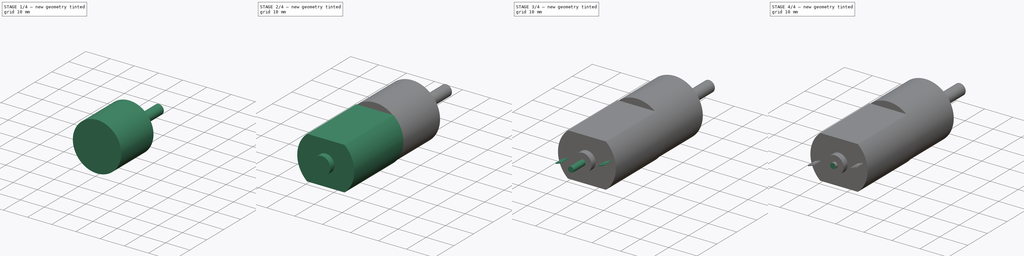
[diagram: build sequence overview — one tinted view per stage of 4, left to right]
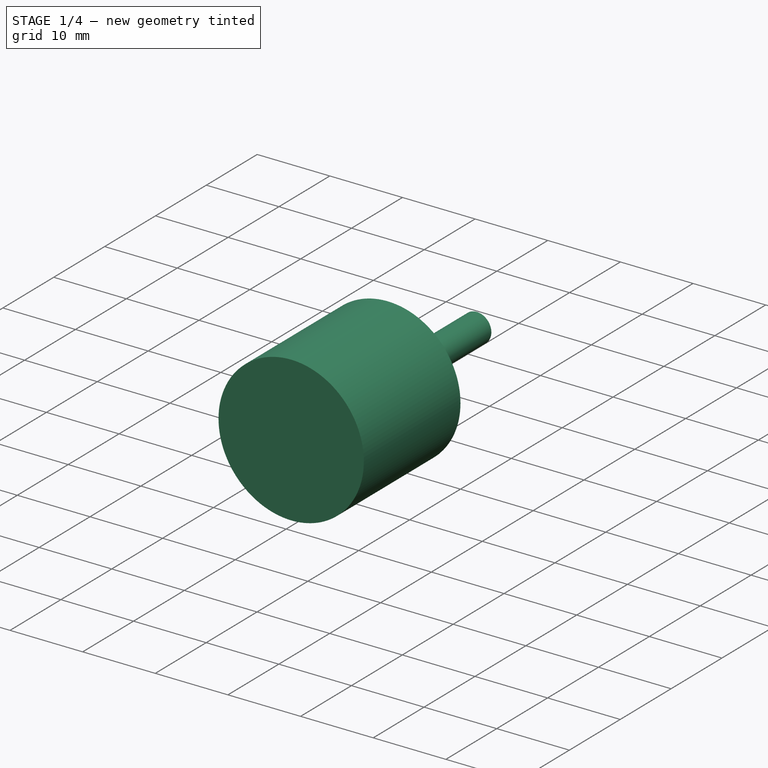
[diagram: stage 1 of 4 — iso view after this stage's code; geometry added in this stage tinted green]
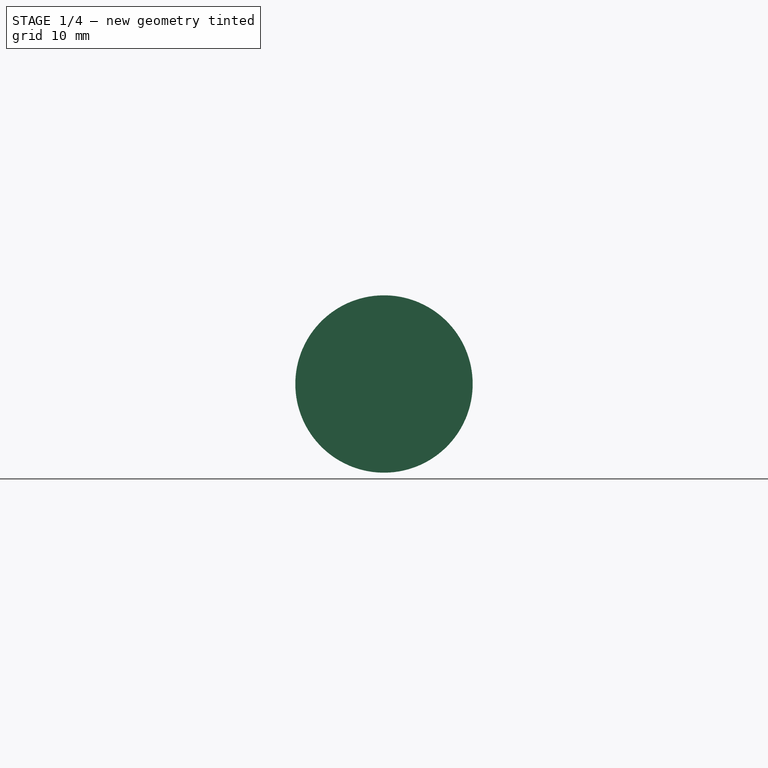
[diagram: stage 1 of 4 — front view after this stage's code; geometry added in this stage tinted green]
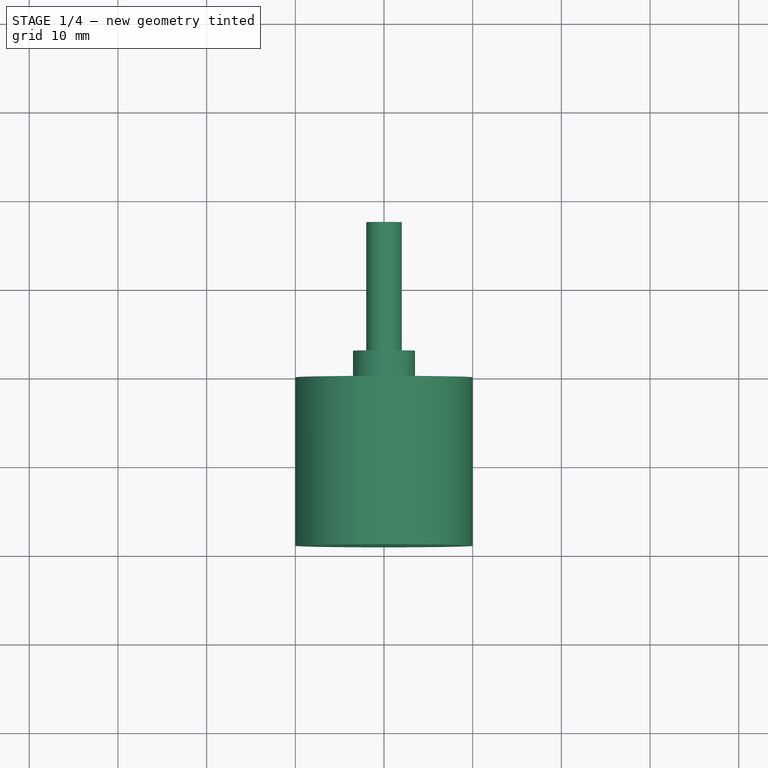
[diagram: stage 1 of 4 — top view after this stage's code; geometry added in this stage tinted green]
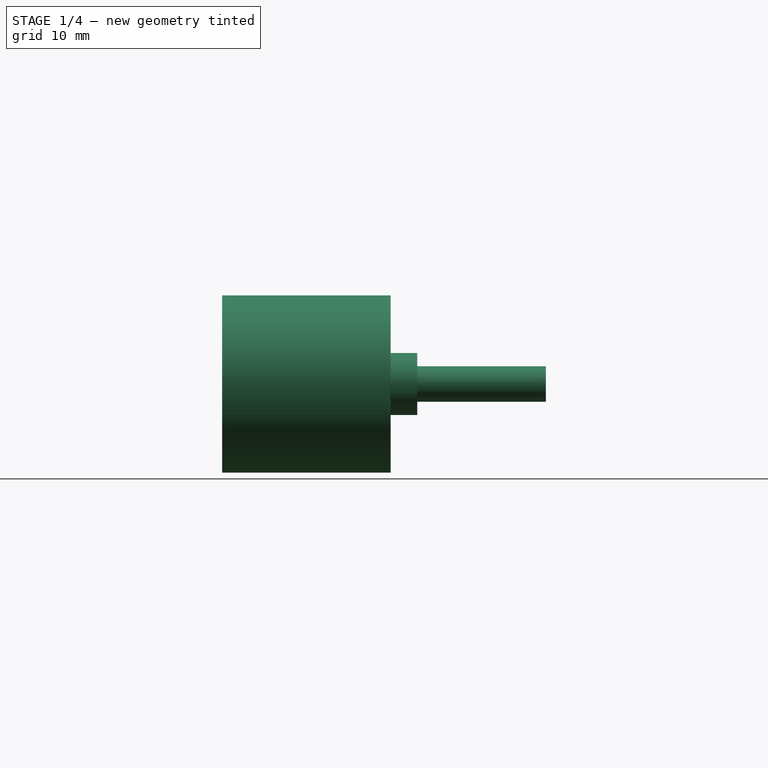
[diagram: stage 1 of 4 — right view after this stage's code; geometry added in this stage tinted green]
FCSTD DOCUMENT  (FreeCAD 0.18.1R)
Label: 20D_156:1
License: All rights reserved
LicenseURL: http://en.wikipedia.org/wiki/All_rights_reserved
objects: Sketcher::SketchObject×11, PartDesign::Pad×7, PartDesign::Pocket×4, PartDesign::PolarPattern×2, PartDesign::Body×1
note: 36 computed .brp shape members not serialized (recipe doc carries the construction recipe); baked Part::Feature solids carry a one-line shape summary decoded from their .brp

FEATURE [Sketcher::SketchObject] Sketch
  MapMode = 5
  Placement = pos=(0,0,0) rot=(1,0,0;1.5708rad)
  Support = -> [XZ_Plane]
  sketch-geometry (1):
    g0: Circle CenterX=0 CenterY=0 CenterZ=0 NormalX=0 NormalY=0 NormalZ=1 AngleXU=0 Radius=10
  constraints (2):
    c: Coincident(g-1,g0)
    c: Radius(g0) = 10
FEATURE [PartDesign::Pad] Pad
  Length = 19
  Length2 = 100
  Placement = pos=(0,0,0) rot=(1,0,0;1.5708rad)
  Profile = -> Sketch
  Type = 0
FEATURE [Sketcher::SketchObject] Sketch001
  MapMode = 5
  Placement = pos=(0,0,0) rot=(-1,0,0;1.5708rad)
  Support = -> [Pad]
  sketch-geometry (1):
    g0: Circle CenterX=0 CenterY=0 CenterZ=0 NormalX=0 NormalY=0 NormalZ=1 AngleXU=0 Radius=3.5
  constraints (2):
    c: Coincident(g0,g-1)
    c: Radius(g0) = 3.5
FEATURE [PartDesign::Pad] Pad001
  BaseFeature = -> Pad
  Length = 3
  Length2 = 100
  Placement = pos=(0,0,0) rot=(1,0,0;1.5708rad)
  Profile = -> Sketch001
  Type = 0
FEATURE [Sketcher::SketchObject] Sketch002
  MapMode = 5
  Placement = pos=(0,3,-2.7e-15) rot=(-1,0,0;1.5708rad)
  Support = -> [Pad001]
  sketch-geometry (1):
    g0: Circle CenterX=0 CenterY=0 CenterZ=0 NormalX=0 NormalY=0 NormalZ=1 AngleXU=0 Radius=2
  constraints (2):
    c: Coincident(g0,g-1)
    c: Radius(g0) = 2
FEATURE [PartDesign::Pad] Pad002
  BaseFeature = -> Pad001
  Length = 14.5
  Length2 = 100
  Placement = pos=(0,0,0) rot=(1,0,0;1.5708rad)
  Profile = -> Sketch002
  Type = 0
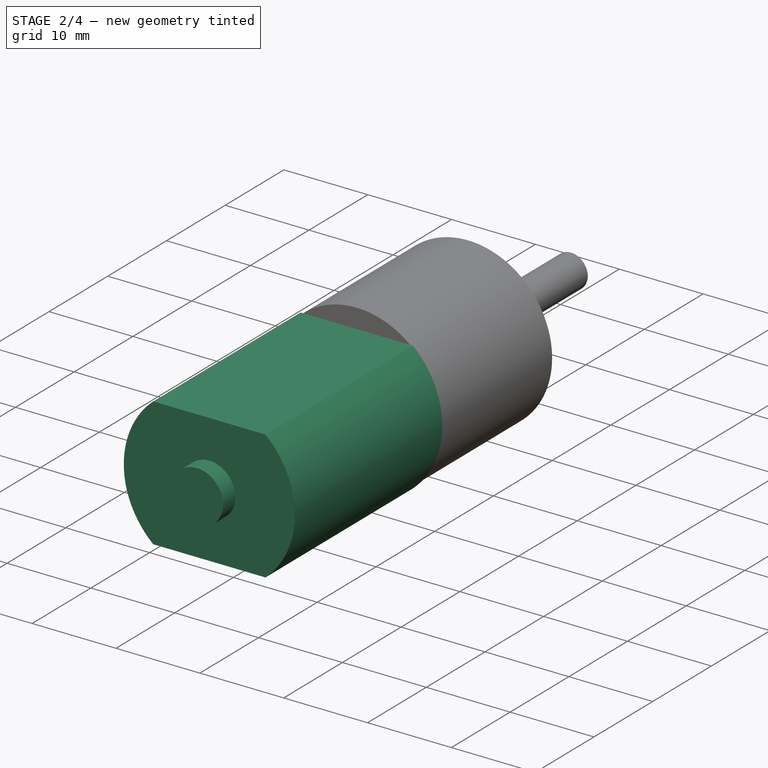
[diagram: stage 2 of 4 — iso view after this stage's code; geometry added in this stage tinted green]
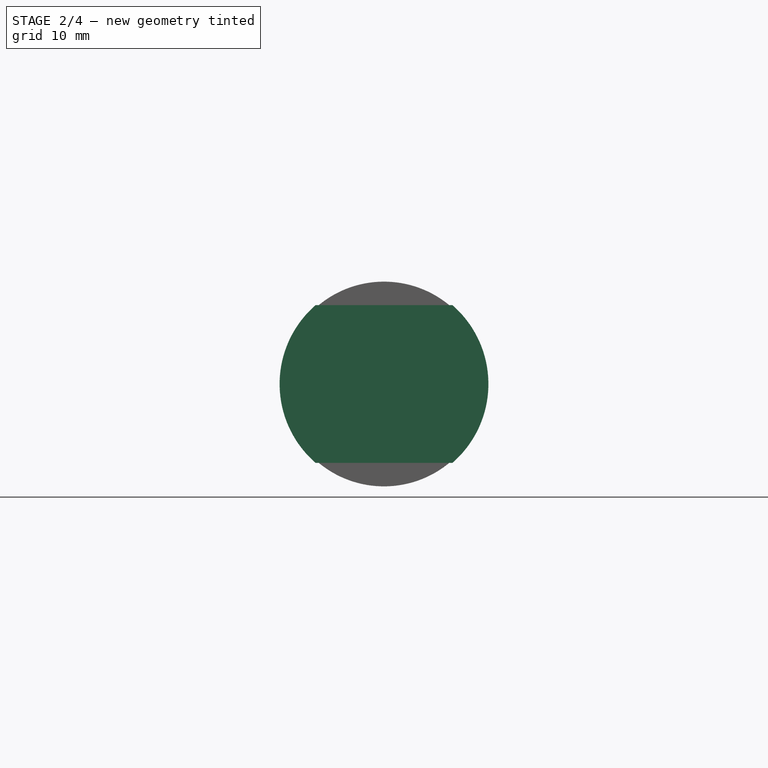
[diagram: stage 2 of 4 — front view after this stage's code; geometry added in this stage tinted green]
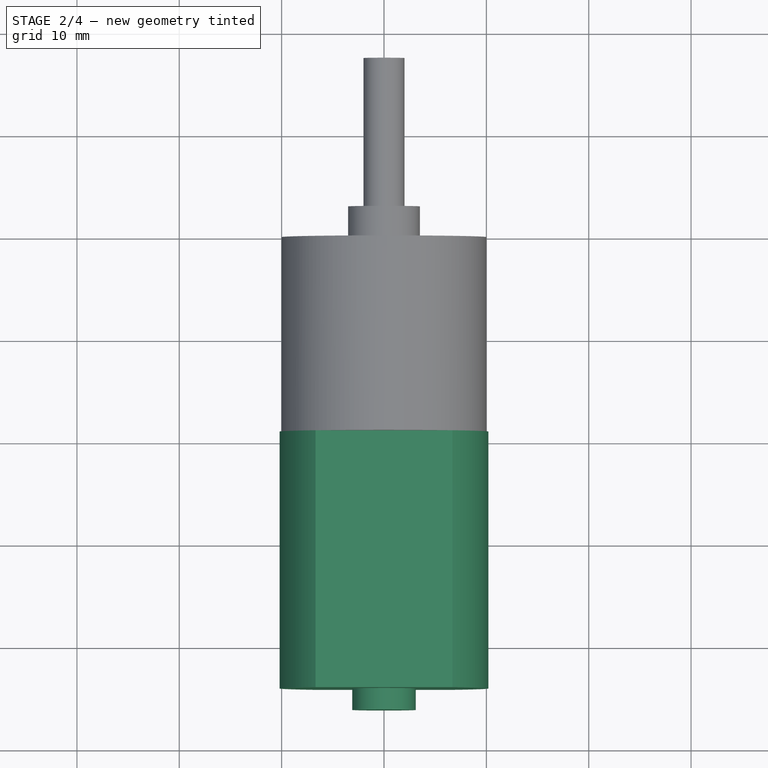
[diagram: stage 2 of 4 — top view after this stage's code; geometry added in this stage tinted green]
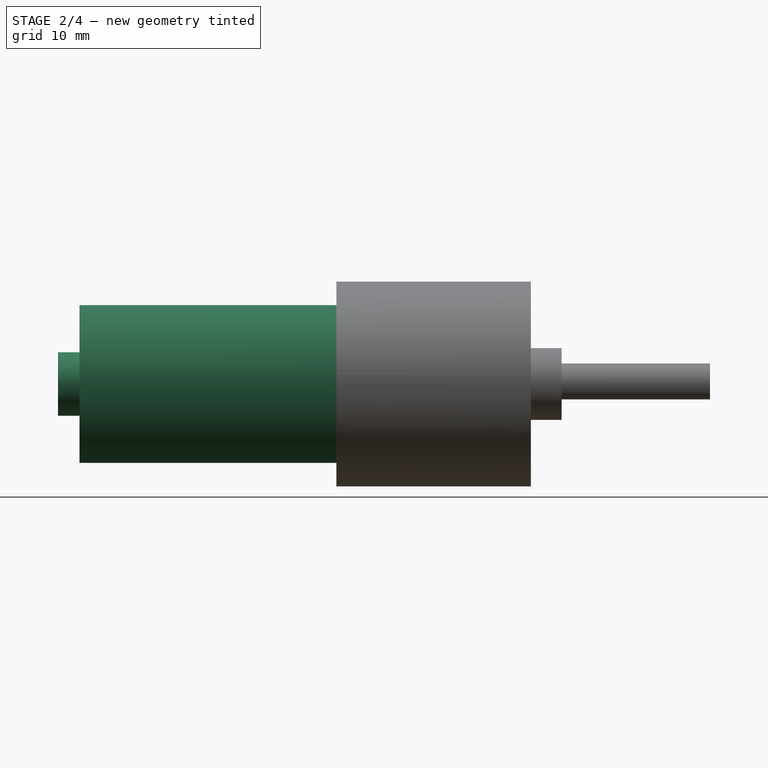
[diagram: stage 2 of 4 — right view after this stage's code; geometry added in this stage tinted green]
FEATURE [Sketcher::SketchObject] Sketch003
  MapMode = 5
  Placement = pos=(0,17.5,-2.19e-14) rot=(-1,0,0;1.5708rad)
  Support = -> [Pad002]
  sketch-geometry (4):
    g0: LineSegment StartX=-5 StartY=6.5 StartZ=0 EndX=5 EndY=6.5 EndZ=0
    g1: LineSegment StartX=5 StartY=6.5 StartZ=0 EndX=5 EndY=1.5 EndZ=0
    g2: LineSegment StartX=5 StartY=1.5 StartZ=0 EndX=-5 EndY=1.5 EndZ=0
    g3: LineSegment StartX=-5 StartY=1.5 StartZ=0 EndX=-5 EndY=6.5 EndZ=0
  constraints (11):
    c: Coincident(g0,g1)
    c: Coincident(g1,g2)
    c: Coincident(g2,g3)
    c: Coincident(g3,g0)
    c: Horizontal(g2)
    c: Vertical(g1)
    c: Vertical(g3)
    c: Distance(g-1,g2) = 1.5
    c: Distance(g0) = 10
    c: Symmetric(g0,g0,g-2)
    c: Distance(g1) = 5
FEATURE [PartDesign::Pocket] Pocket
  BaseFeature = -> Pad002
  Length = 14.5
  Length2 = 100
  Placement = pos=(0,0,0) rot=(1,0,0;1.5708rad)
  Profile = -> Sketch003
  Type = 0
FEATURE [Sketcher::SketchObject] Sketch004
  MapMode = 5
  Placement = pos=(0,-19,8.4e-15) rot=(1,0,0;1.5708rad)
  Support = -> [Pocket]
  sketch-geometry (6):
    g0: LineSegment StartX=-6.68954 StartY=7.7 StartZ=0 EndX=6.68954 EndY=7.7 EndZ=0
    g1: LineSegment [constr] StartX=6.68954 StartY=7.7 StartZ=0 EndX=6.68954 EndY=-7.7 EndZ=0
    g2: LineSegment StartX=6.68954 StartY=-7.7 StartZ=0 EndX=-6.68954 EndY=-7.7 EndZ=0
    g3: LineSegment [constr] StartX=-6.68954 StartY=-7.7 StartZ=0 EndX=-6.68954 EndY=7.7 EndZ=0
    g4: ArcOfCircle CenterX=0 CenterY=-1e-16 CenterZ=0 NormalX=0 NormalY=0 NormalZ=1 AngleXU=0 Radius=10.2 StartAngle=5.42768 EndAngle=7.13869
    g5: ArcOfCircle CenterX=0 CenterY=0 CenterZ=0 NormalX=0 NormalY=0 NormalZ=1 AngleXU=0 Radius=10.2 StartAngle=2.28609 EndAngle=3.9971
  constraints (15):
    c: Coincident(g0,g1)
    c: Coincident(g1,g2)
    c: Coincident(g2,g3)
    c: Coincident(g3,g0)
    c: Horizontal(g2)
    c: Symmetric(g1,g0,g-1)
    c: Symmetric(g0,g0,g-2)
    c: Distance(g1) = 15.4
    c: Coincident(g2,g5)
    c: Coincident(g3,g5)
    c: Coincident(g4,g0)
    c: Coincident(g5,g-1)
    c: Coincident(g2,g4)
    c: Coincident(g5,g4)
    c: Radius(g4) = 10.2
FEATURE [PartDesign::Pad] Pad003
  BaseFeature = -> Pocket
  Length = 25.1
  Length2 = 100
  Placement = pos=(0,0,0) rot=(1,0,0;1.5708rad)
  Profile = -> Sketch004
  Type = 0
FEATURE [Sketcher::SketchObject] Sketch005
  MapMode = 5
  Placement = pos=(0,-44.1,1.121e-13) rot=(1,0,0;1.5708rad)
  Support = -> [Pad003]
  expr: Constraints[1] = 6.2 / 2
  sketch-geometry (1):
    g0: Circle CenterX=0 CenterY=0 CenterZ=0 NormalX=0 NormalY=0 NormalZ=1 AngleXU=0 Radius=3.1
  constraints (2):
    c: Coincident(g0,g-1)
    c: Radius(g0) = 3.1
FEATURE [PartDesign::Pad] Pad004
  BaseFeature = -> Pad003
  Length = 2.1
  Length2 = 100
  Placement = pos=(0,0,0) rot=(1,0,0;1.5708rad)
  Profile = -> Sketch005
  Type = 0
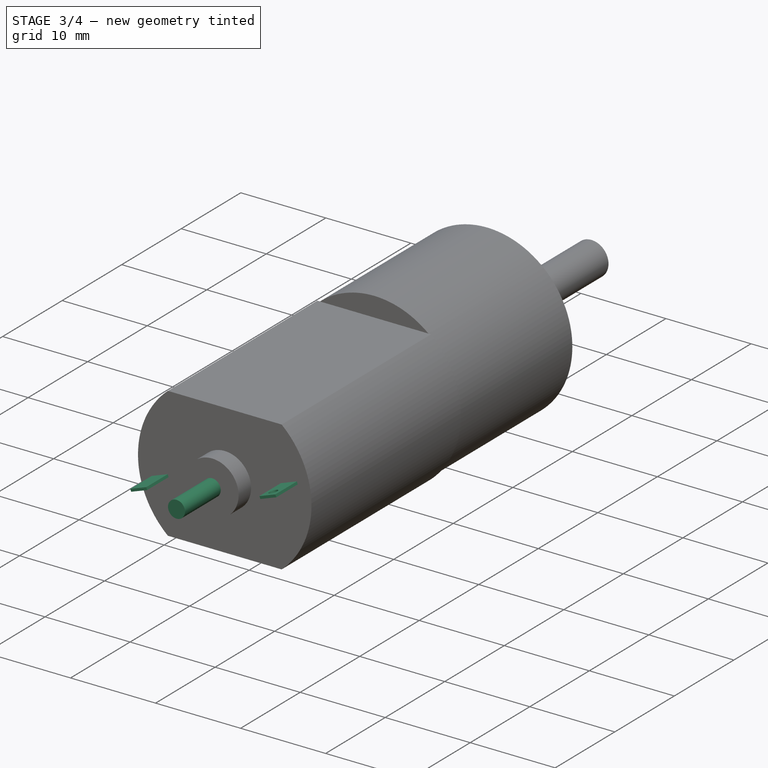
[diagram: stage 3 of 4 — iso view after this stage's code; geometry added in this stage tinted green]
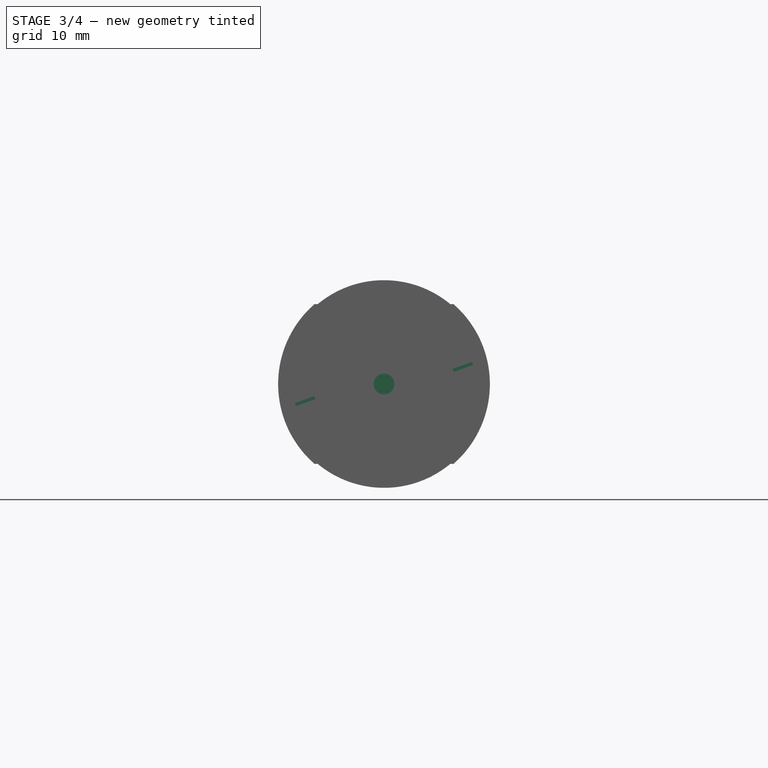
[diagram: stage 3 of 4 — front view after this stage's code; geometry added in this stage tinted green]
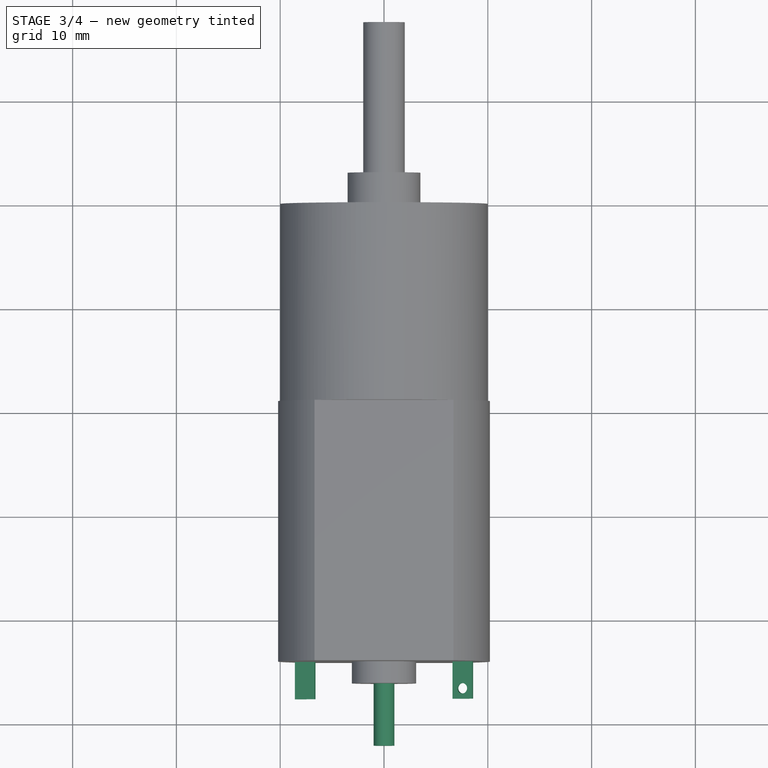
[diagram: stage 3 of 4 — top view after this stage's code; geometry added in this stage tinted green]
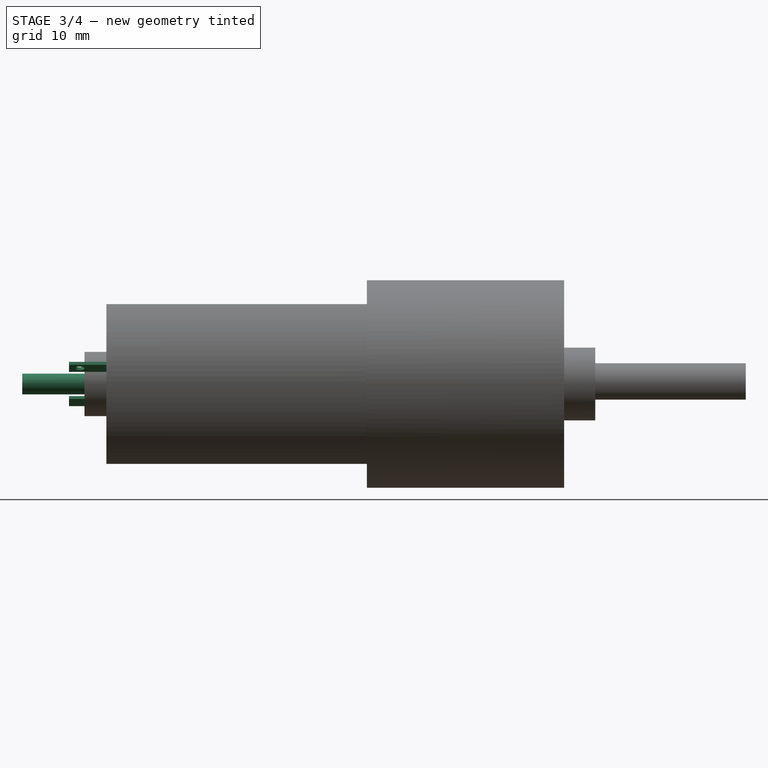
[diagram: stage 3 of 4 — right view after this stage's code; geometry added in this stage tinted green]
FEATURE [Sketcher::SketchObject] Sketch006
  MapMode = 5
  Placement = pos=(0,-46.2,1.327e-13) rot=(1,0,0;1.5708rad)
  Support = -> [Pad004]
  sketch-geometry (1):
    g0: Circle CenterX=0 CenterY=0 CenterZ=0 NormalX=0 NormalY=0 NormalZ=1 AngleXU=0 Radius=1
  constraints (2):
    c: Coincident(g-1,g0)
    c: Radius(g0) = 1
FEATURE [PartDesign::Pad] Pad005
  BaseFeature = -> Pad004
  Length = 6
  Length2 = 100
  Placement = pos=(0,0,0) rot=(1,0,0;1.5708rad)
  Profile = -> Sketch006
  Type = 0
FEATURE [Sketcher::SketchObject] Sketch007
  MapMode = 5
  Placement = pos=(0,-44.1,1.121e-13) rot=(1,0,0;1.5708rad)
  Support = -> [Pad005]
FEATURE [Sketcher::SketchObject] Sketch008
  MapMode = 5
  Placement = pos=(0,-44.1,1.121e-13) rot=(1,0,0;1.5708rad)
  Support = -> [Pad005]
  sketch-geometry (7):
    g0: LineSegment [constr] StartX=-7.23563 StartY=-2.63356 StartZ=0 EndX=0 EndY=0 EndZ=0
    g1: LineSegment [constr] StartX=0 StartY=0 StartZ=0 EndX=7.23563 EndY=2.63356 EndZ=0
    g2: LineSegment StartX=6.60376 StartY=1.44581 StartZ=0 EndX=8.48314 EndY=2.12985 EndZ=0
    g3: LineSegment StartX=8.48314 StartY=2.12985 StartZ=0 EndX=8.58575 EndY=1.84794 EndZ=0
    g4: LineSegment StartX=8.58575 StartY=1.84794 StartZ=0 EndX=6.70636 EndY=1.1639 EndZ=0
    g5: LineSegment StartX=6.70636 StartY=1.1639 StartZ=0 EndX=6.60376 EndY=1.44581 EndZ=0
    g6: LineSegment [constr] StartX=7.23563 StartY=2.63356 StartZ=0 EndX=7.54345 EndY=1.78783 EndZ=0
  constraints (20):
    c: Coincident(g1,g0)
    c: Equal(g1,g0)
    c: Parallel(g1,g0)
    c: Coincident(g-1,g0)
    c: Angle(g1) = 0.349066
    c: Distance(g1,g0) = 15.4
    c: Coincident(g2,g3)
    c: Coincident(g3,g4)
    c: Coincident(g4,g5)
    c: Coincident(g2,g5)
    c: Perpendicular(g5,g2)
    c: Perpendicular(g3,g2)
    c: Perpendicular(g4,g3)
    c: Distance(g1,g2) = 0.9
    c: Distance(g4) = 2
    c: Distance(g5) = 0.3
    c: PointOnObject(g6,g2)
    c: Coincident(g6,g1)
    c: Perpendicular(g1,g6)
    c: Symmetric(g2,g2,g6)
FEATURE [PartDesign::Pad] Pad006
  BaseFeature = -> Pad005
  Length = 3.6
  Length2 = 100
  Placement = pos=(0,0,0) rot=(1,0,0;1.5708rad)
  Profile = -> Sketch008
  Type = 0
FEATURE [Sketcher::SketchObject] Sketch009
  MapMode = 5
  Placement = pos=(0.410424,-4.6e-15,-1.12763) rot=(0.984808,0,0.173648;3.14159rad)
  Support = -> [Pad006]
  sketch-geometry (1):
    g0: Circle CenterX=7.68971 CenterY=46.6956 CenterZ=0 NormalX=0 NormalY=0 NormalZ=1 AngleXU=0 Radius=0.5
  constraints (3):
    c: DistanceX(g0) = 7.68971
    c: DistanceY(g0) = 46.6956
    c: Radius(g0) = 0.5
FEATURE [PartDesign::Pocket] Pocket001
  BaseFeature = -> Pad006
  Length = 5
  Length2 = 100
  Placement = pos=(0,0,0) rot=(1,0,0;1.5708rad)
  Profile = -> Sketch009
  Type = 0
FEATURE [PartDesign::PolarPattern] PolarPattern
  Angle = 360
  Axis = -> Sketch008 [N_Axis]
  BaseFeature = -> Pocket001
  Occurrences = 2
  Originals = -> [Pad006]
  Placement = pos=(0,0,0) rot=(1,0,0;1.5708rad)
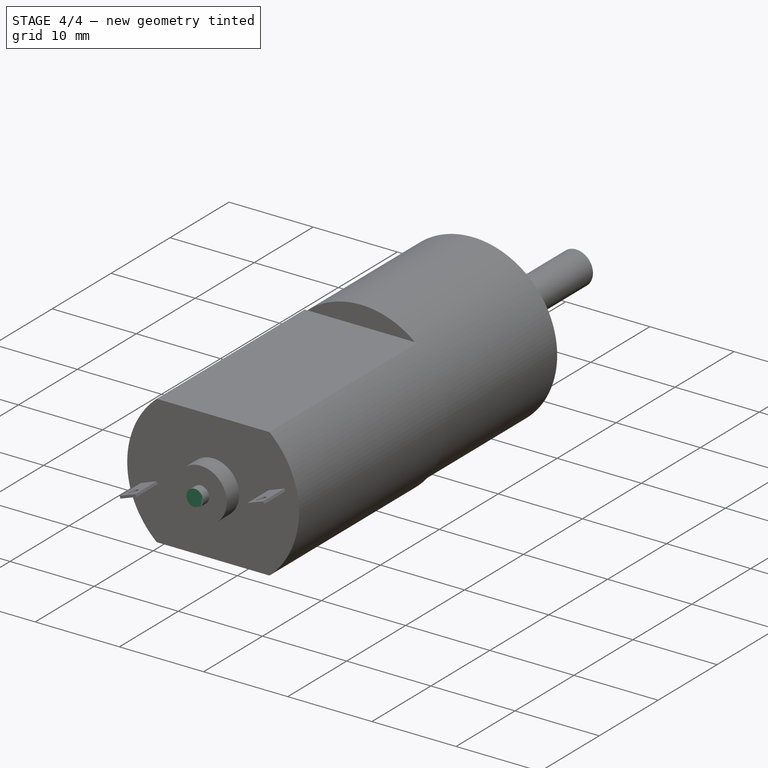
[diagram: stage 4 of 4 — iso view after this stage's code; geometry added in this stage tinted green]
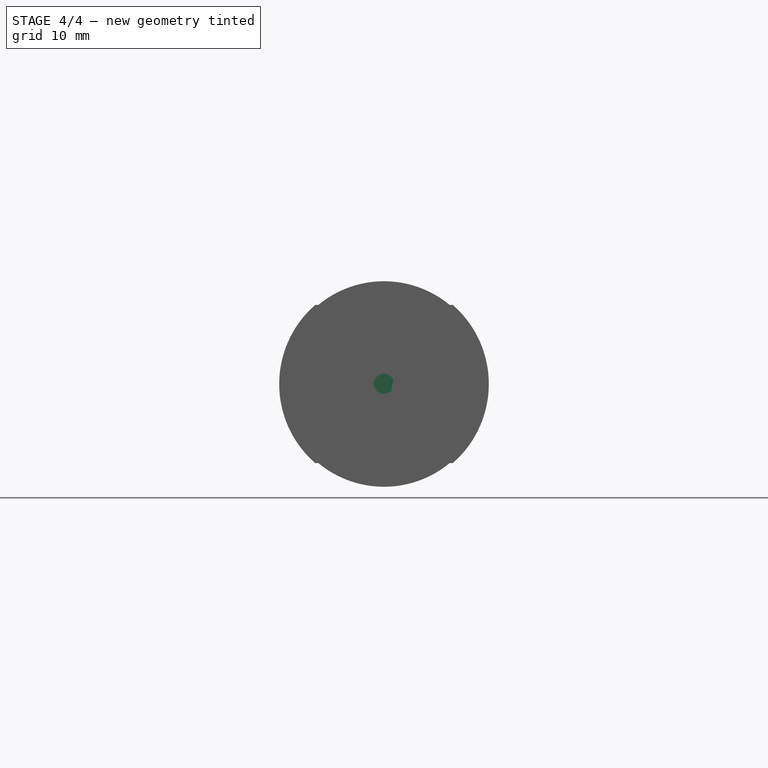
[diagram: stage 4 of 4 — front view after this stage's code; geometry added in this stage tinted green]
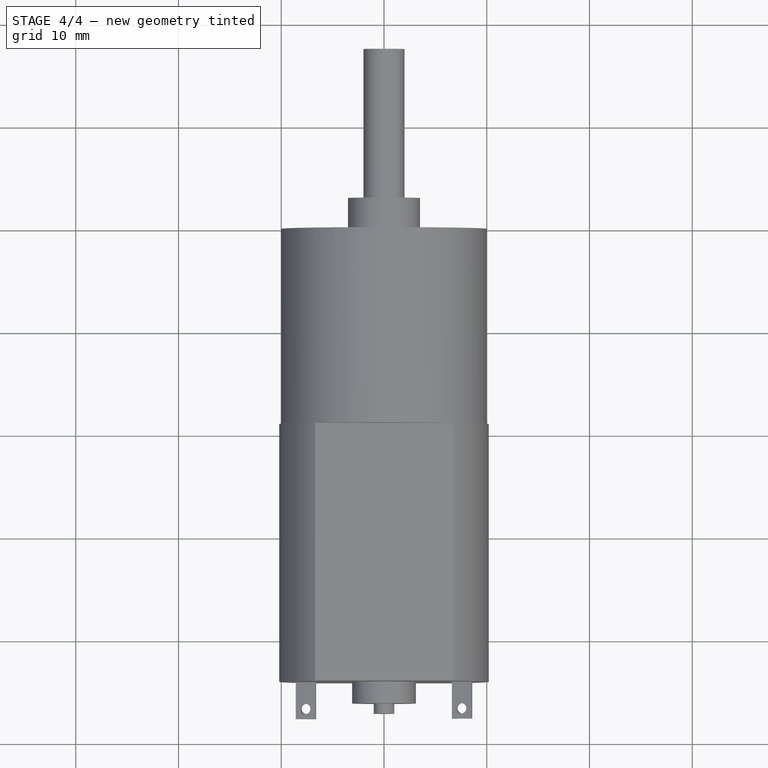
[diagram: stage 4 of 4 — top view after this stage's code; geometry added in this stage tinted green]
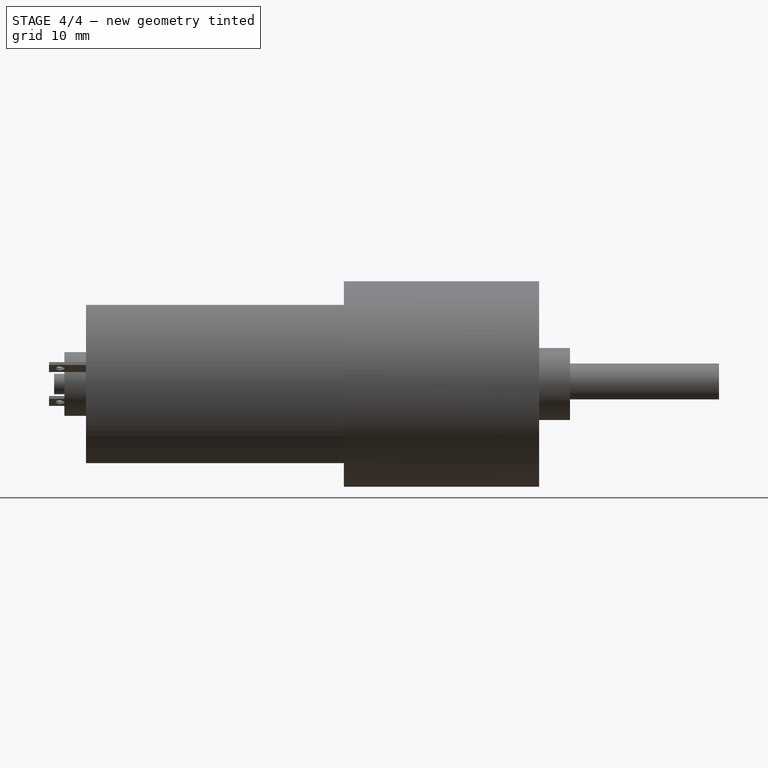
[diagram: stage 4 of 4 — right view after this stage's code; geometry added in this stage tinted green]
FEATURE [PartDesign::PolarPattern] PolarPattern001
  Angle = 360
  Axis = -> Y_Axis
  BaseFeature = -> PolarPattern
  Occurrences = 2
  Originals = -> [Pocket001]
  Placement = pos=(0,0,0) rot=(1,0,0;1.5708rad)
FEATURE [PartDesign::Pocket] Pocket002
  BaseFeature = -> PolarPattern001
  Length = 5
  Length2 = 100
  Placement = pos=(0,0,0) rot=(1,0,0;1.5708rad)
  Profile = -> PolarPattern001 [Face35]
  Type = 0
FEATURE [Sketcher::SketchObject] Sketch010
  MapMode = 5
  Placement = pos=(0,0,0) rot=(-1,0,0;1.5708rad)
  Support = -> [Pocket002]
  expr: Constraints[4] = 2 * 7.5
  expr: Constraints[2] = 2.5 / 2
  sketch-geometry (2):
    g0: Circle CenterX=-7.5 CenterY=0 CenterZ=0 NormalX=0 NormalY=0 NormalZ=1 AngleXU=0 Radius=1.25
    g1: Circle CenterX=7.5 CenterY=0 CenterZ=0 NormalX=0 NormalY=0 NormalZ=1 AngleXU=0 Radius=1.25
  constraints (5):
    c: Symmetric(g1,g0,g-2)
    c: PointOnObject(g0,g-1)
    c: Radius(g0) = 1.25
    c: Equal(g0,g1)
    c: Distance(g1,g0) = 15
FEATURE [PartDesign::Pocket] Pocket003
  BaseFeature = -> Pocket002
  Length = 5
  Length2 = 100
  Placement = pos=(0,0,0) rot=(1,0,0;1.5708rad)
  Profile = -> Sketch010
  Type = 0
FEATURE [PartDesign::Body] Body
  Group = -> [Sketch,Pad,Sketch001,Pad001,Sketch002,Pad002,Sketch003,Pocket,Sketch004,Pad003,Sketch005,Pad004,Sketch006,Pad005,Sketch007,Sketch008,Pad006,Sketch009,Pocket001,PolarPattern,PolarPattern001,Pocket002,Sketch010,Pocket003]
  Origin = -> Origin
  Tip = -> Pocket003
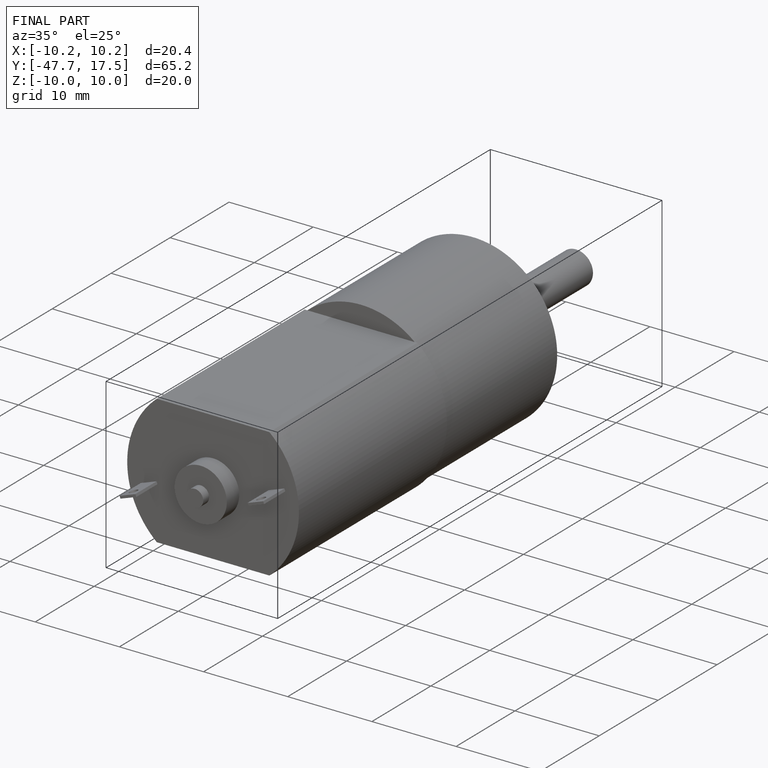
[diagram: finished part — iso view with bounding-box wireframe]
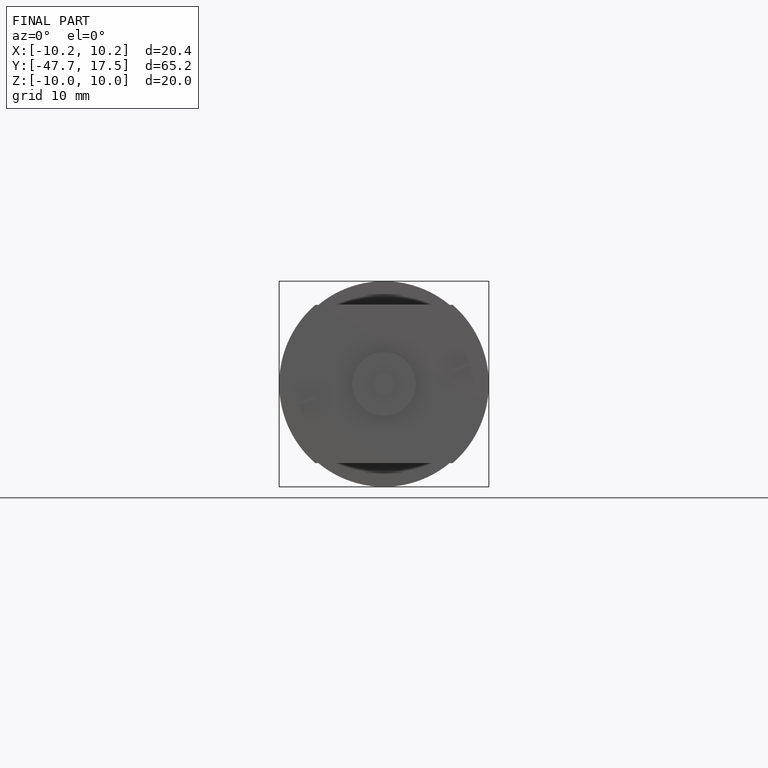
[diagram: finished part — front view with bounding-box wireframe]
